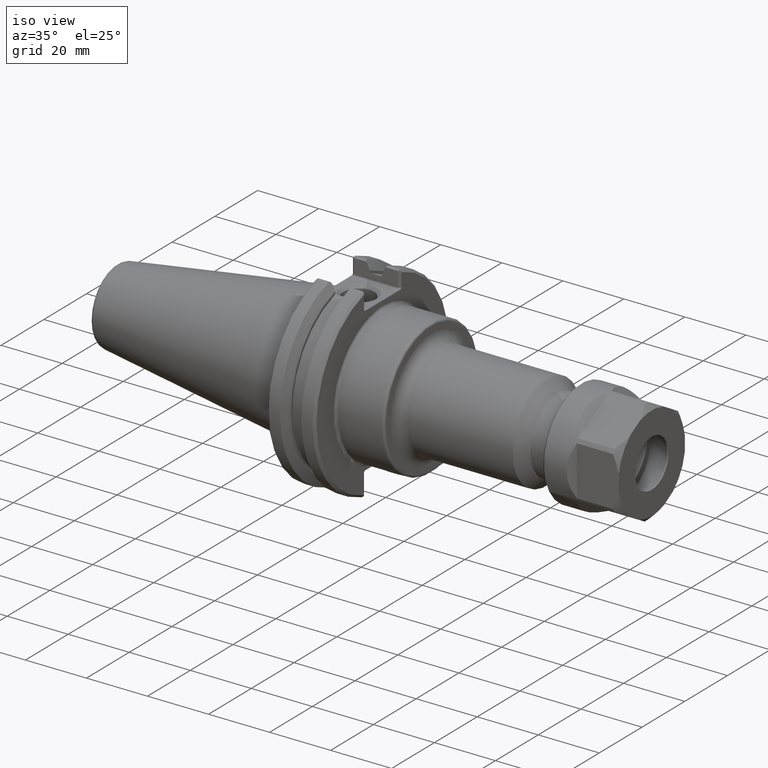
[diagram: clean part render]
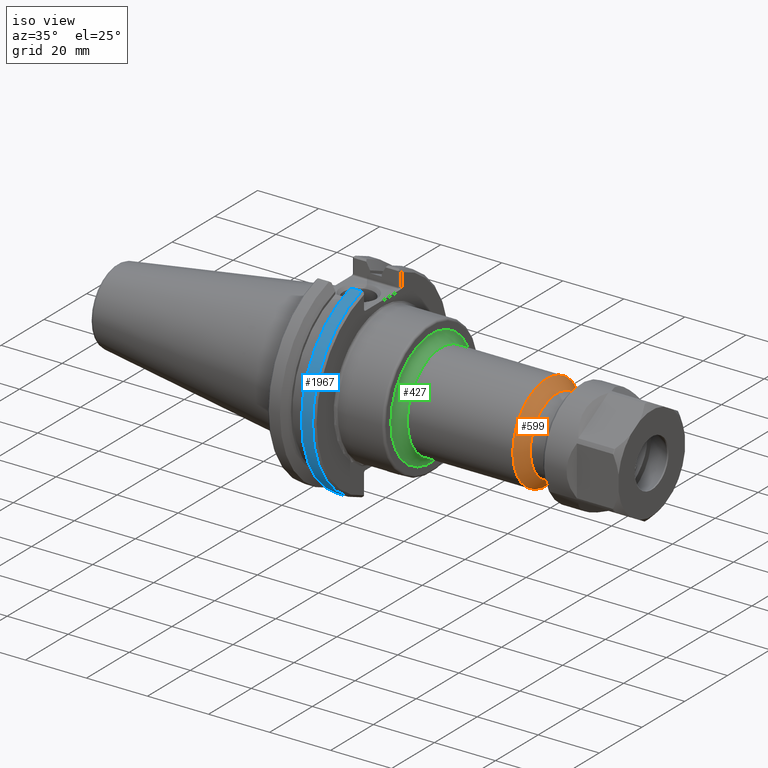
[diagram: same view with three faces highlighted in distinct colors, each labeled with its STEP entity id]
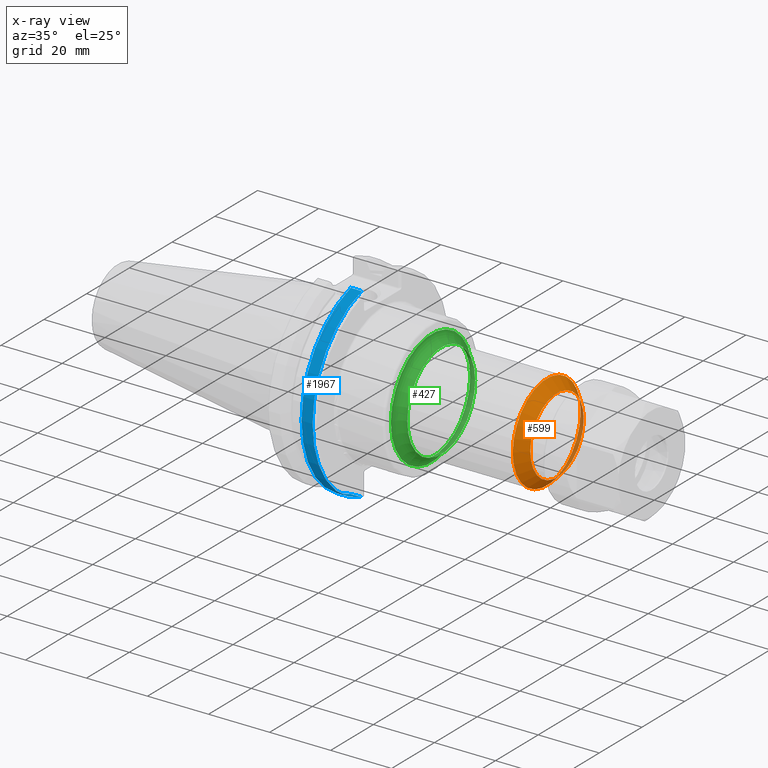
[diagram: x-ray of the same camera — body ghosted, the three highlighted faces saturated]
A machine part, iso view with three faces highlighted in distinct colors.
The next image is the same camera in x-ray (body ghosted, the three faces saturated) — at least one of them is partly hidden behind the body in this view.
Their STEP definitions:

[orange] entity #599 — the highlighted conical surface has half-angle 45 deg.
#152=CARTESIAN_POINT('',(2.998,0.492125984251969,0.0));
#153=VERTEX_POINT('',#152);
#154=CARTESIAN_POINT('',(2.998,0.0,0.0));
#155=DIRECTION('',(1.0,0.0,0.0));
#156=DIRECTION('',(0.0,1.0,0.0));
#157=AXIS2_PLACEMENT_3D('',#154,#155,#156);
#158=CIRCLE('',#157,0.492125984251969);
#159=EDGE_CURVE('',#153,#153,#158,.T.);
#433=CARTESIAN_POINT('',(2.865125984251969,0.625,0.0));
#434=VERTEX_POINT('',#433);
#435=CARTESIAN_POINT('',(2.865125984251969,0.0,0.0));
#436=DIRECTION('',(1.0,0.0,0.0));
#437=DIRECTION('',(0.0,1.0,0.0));
#438=AXIS2_PLACEMENT_3D('',#435,#436,#437);
#439=CIRCLE('',#438,0.625);
#440=EDGE_CURVE('',#434,#434,#439,.T.);
#588=CARTESIAN_POINT('',(2.931562992125985,0.0,0.0));
#589=DIRECTION('',(-1.0,0.0,0.0));
#590=DIRECTION('',(0.0,1.0,0.0));
#591=AXIS2_PLACEMENT_3D('',#588,#589,#590);
#592=CONICAL_SURFACE('',#591,0.558562992125984,45.000000000000021);
#593=ORIENTED_EDGE('',*,*,#159,.F.);
#594=EDGE_LOOP('',(#593));
#595=FACE_OUTER_BOUND('',#594,.T.);
#596=ORIENTED_EDGE('',*,*,#440,.T.);
#597=EDGE_LOOP('',(#596));
#598=FACE_BOUND('',#597,.T.);
#599=ADVANCED_FACE('',(#595,#598),#592,.T.);

[blue] entity #1967 — the highlighted cylindrical surface (partial cylindrical patch) has radius 31.75 mm, axis along (1, 0, 0).
#1894=CARTESIAN_POINT('',(0.720000000000203,-0.34409810679788,-1.201705659842757));
#1895=VERTEX_POINT('',#1894);
#1909=CARTESIAN_POINT('',(0.577173872226652,-0.34409810679788,-1.201705659842757));
#1910=VERTEX_POINT('',#1909);
#1911=CARTESIAN_POINT('',(0.720000000000203,-0.34409810679788,-1.201705659842756));
#1912=DIRECTION('',(-1.0,0.0,0.0));
#1913=VECTOR('',#1912,0.142826127773552);
#1914=LINE('',#1911,#1913);
#1915=EDGE_CURVE('',#1895,#1910,#1914,.T.);
#1935=CARTESIAN_POINT('',(0.4375,0.0,0.0));
#1936=DIRECTION('',(1.0,0.0,0.0));
#1937=DIRECTION('',(-1.624514E-013,1.0,0.0));
#1938=AXIS2_PLACEMENT_3D('',#1935,#1936,#1937);
#1939=CYLINDRICAL_SURFACE('',#1938,1.25);
#1940=ORIENTED_EDGE('',*,*,#1915,.F.);
#1941=CARTESIAN_POINT('',(0.720000000000203,-0.344098106797854,1.201705659842764));
#1942=VERTEX_POINT('',#1941);
#1943=CARTESIAN_POINT('',(0.720000000000203,0.0,0.0));
#1944=DIRECTION('',(1.0,1.624514E-013,0.0));
#1945=DIRECTION('',(1.624514E-013,-1.0,0.0));
#1946=AXIS2_PLACEMENT_3D('',#1943,#1944,#1945);
#1947=CIRCLE('',#1946,1.25);
#1948=EDGE_CURVE('',#1942,#1895,#1947,.T.);
#1949=ORIENTED_EDGE('',*,*,#1948,.F.);
#1950=CARTESIAN_POINT('',(0.577173872226652,-0.344098106797854,1.201705659842764));
#1951=VERTEX_POINT('',#1950);
#1952=CARTESIAN_POINT('',(0.577173872226652,-0.344098106797854,1.201705659842764));
#1953=DIRECTION('',(1.0,0.0,0.0));
#1954=VECTOR('',#1953,0.142826127773552);
#1955=LINE('',#1952,#1954);
#1956=EDGE_CURVE('',#1951,#1942,#1955,.T.);
#1957=ORIENTED_EDGE('',*,*,#1956,.F.);
#1958=CARTESIAN_POINT('',(0.577173872226652,0.0,0.0));
#1959=DIRECTION('',(1.0,1.624514E-013,0.0));
#1960=DIRECTION('',(-1.624514E-013,1.0,0.0));
#1961=AXIS2_PLACEMENT_3D('',#1958,#1959,#1960);
#1962=CIRCLE('',#1961,1.25);
#1963=EDGE_CURVE('',#1951,#1910,#1962,.T.);
#1964=ORIENTED_EDGE('',*,*,#1963,.T.);
#1965=EDGE_LOOP('',(#1940,#1949,#1957,#1964));
#1966=FACE_OUTER_BOUND('',#1965,.T.);
#1967=ADVANCED_FACE('',(#1966),#1939,.T.);

[green] entity #427 — the highlighted toroidal blend (fillet) surface has major radius 19.05 mm and minor (blend) radius 3.175 mm.
#396=CARTESIAN_POINT('',(1.38,0.75,1.836970E-016));
#397=VERTEX_POINT('',#396);
#398=CARTESIAN_POINT('',(1.38,0.0,0.0));
#399=DIRECTION('',(1.0,0.0,0.0));
#400=DIRECTION('',(0.0,-1.0,0.0));
#401=AXIS2_PLACEMENT_3D('',#398,#399,#400);
#402=CIRCLE('',#401,0.75);
#403=EDGE_CURVE('',#397,#397,#402,.T.);
#408=CARTESIAN_POINT('',(1.505,0.0,0.0));
#409=DIRECTION('',(-1.0,0.0,0.0));
#410=DIRECTION('',(0.0,0.0,1.0));
#411=AXIS2_PLACEMENT_3D('',#408,#409,#410);
#412=TOROIDAL_SURFACE('',#411,0.75,0.125);
#413=CARTESIAN_POINT('',(1.505,0.625,0.0));
#414=VERTEX_POINT('',#413);
#415=CARTESIAN_POINT('',(1.505,0.0,0.0));
#416=DIRECTION('',(-1.0,0.0,0.0));
#417=DIRECTION('',(0.0,-1.0,0.0));
#418=AXIS2_PLACEMENT_3D('',#415,#416,#417);
#419=CIRCLE('',#418,0.625);
#420=EDGE_CURVE('',#414,#414,#419,.T.);
#421=ORIENTED_EDGE('',*,*,#420,.T.);
#422=EDGE_LOOP('',(#421));
#423=FACE_OUTER_BOUND('',#422,.T.);
#424=ORIENTED_EDGE('',*,*,#403,.T.);
#425=EDGE_LOOP('',(#424));
#426=FACE_BOUND('',#425,.T.);
#427=ADVANCED_FACE('',(#423,#426),#412,.F.);